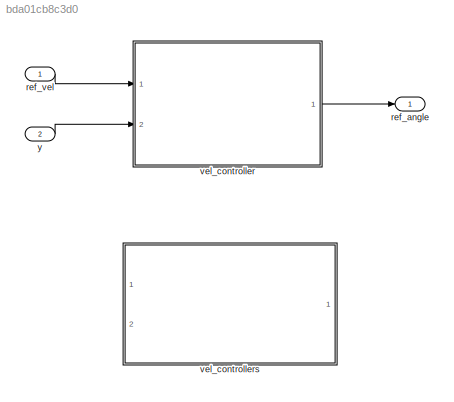
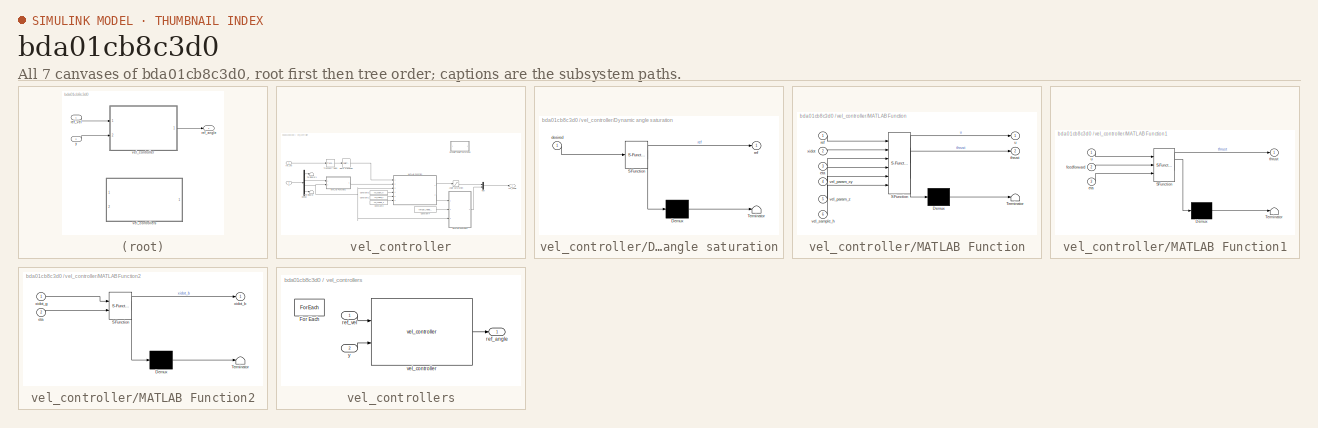
[diagram: thumbnail index - all 7 canvases of the model, root first then tree order]
MODEL slx_bda01cb8c3d0
KIND library
CONFIG AbsTol = auto
CONFIG EnableMultiTasking = off
CONFIG FixedStep = auto
CONFIG MaxStep = auto
CONFIG MinStep = auto
CONFIG RelTol = 1e-3
CONFIG SampleTimeConstraint = Unconstrained
CONFIG Solver = VariableStepAuto
CONFIG SolverName = VariableStepAuto
CONFIG StartTime = 0.0
CONFIG StopTime = 10.0
BLOCK [Outport] ref_angle
  IconDisplay = Port number
BLOCK [Inport] ref_vel
  IconDisplay = Port number
  PortDimensions = [3]
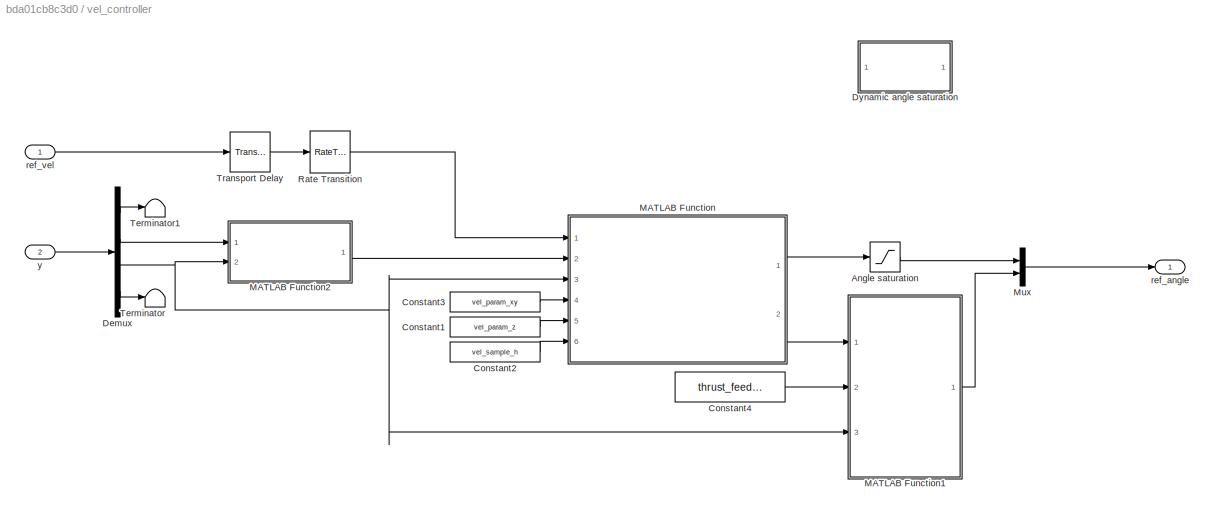
BLOCK [SubSystem] vel_controller
  Ports = [2, 1]
  RequestExecContextInheritance = off
BLOCK [Saturate] vel_controller/Angle saturation
  InputPortMap = u0
  LowerLimit = -vel_sat_angle
  Ports = [1, 1]
  UpperLimit = vel_sat_angle
BLOCK [Constant] vel_controller/Constant1
  Value = vel_param_z
BLOCK [Constant] vel_controller/Constant2
  Value = vel_sample_h
BLOCK [Constant] vel_controller/Constant3
  Value = vel_param_xy
BLOCK [Constant] vel_controller/Constant4
  Value = thrust_feedforward
BLOCK [Demux] vel_controller/Demux
  DisplayOption = bar
  Ports = [1, 4]
BLOCK [SubSystem] vel_controller/Dynamic angle saturation
  Commented = on
  ErrorFcn = Stateflow.Translate.translate
  PermitHierarchicalResolution = ExplicitOnly
  Ports = [1, 1]
  RequestExecContextInheritance = off
  SFBlockType = MATLAB Function
  TreatAsAtomicUnit = on
BLOCK [Demux] vel_controller/Dynamic angle saturation/ Demux 
  Outputs = 1
  Ports = [1, 1]
BLOCK [S-Function] vel_controller/Dynamic angle saturation/ SFunction 
  EnableBusSupport = off
  FunctionName = sf_sfun
  Parameters = vel_sat_angle
  PortCounts = [1 2]
  Ports = [1, 2]
  SFcnIsStateOwnerBlock = off
  SFunctionDeploymentMode = off
  Tag = Stateflow S-Function vel_controller_lib 4
BLOCK [Terminator] vel_controller/Dynamic angle saturation/ Terminator 
BLOCK [Inport] vel_controller/Dynamic angle saturation/desired
  IconDisplay = Port number
BLOCK [Outport] vel_controller/Dynamic angle saturation/ref
  IconDisplay = Port number
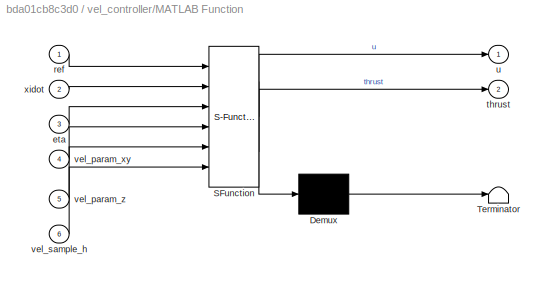
BLOCK [SubSystem] vel_controller/MATLAB Function
  ErrorFcn = Stateflow.Translate.translate
  PermitHierarchicalResolution = ExplicitOnly
  Ports = [6, 2]
  RequestExecContextInheritance = off
  SFBlockType = MATLAB Function
  SystemSampleTime = vel_sample_h
  TreatAsAtomicUnit = on
BLOCK [Demux] vel_controller/MATLAB Function/ Demux 
  Outputs = 1
  Ports = [1, 1]
BLOCK [S-Function] vel_controller/MATLAB Function/ SFunction 
  EnableBusSupport = off
  FunctionName = sf_sfun
  PortCounts = [6 3]
  Ports = [6, 3]
  SFcnIsStateOwnerBlock = off
  SFunctionDeploymentMode = off
  Tag = Stateflow S-Function vel_controller_lib 3
BLOCK [Terminator] vel_controller/MATLAB Function/ Terminator 
BLOCK [Inport] vel_controller/MATLAB Function/eta
  IconDisplay = Port number
  Port = 3
BLOCK [Inport] vel_controller/MATLAB Function/ref
  IconDisplay = Port number
BLOCK [Outport] vel_controller/MATLAB Function/thrust
  IconDisplay = Port number
  Port = 2
BLOCK [Outport] vel_controller/MATLAB Function/u
  IconDisplay = Port number
BLOCK [Inport] vel_controller/MATLAB Function/vel_param_xy
  IconDisplay = Port number
  Port = 4
BLOCK [Inport] vel_controller/MATLAB Function/vel_param_z
  IconDisplay = Port number
  Port = 5
BLOCK [Inport] vel_controller/MATLAB Function/vel_sample_h
  IconDisplay = Port number
  Port = 6
BLOCK [Inport] vel_controller/MATLAB Function/xidot
  IconDisplay = Port number
  Port = 2
BLOCK [SubSystem] vel_controller/MATLAB Function1
  ErrorFcn = Stateflow.Translate.translate
  PermitHierarchicalResolution = ExplicitOnly
  Ports = [3, 1]
  RequestExecContextInheritance = off
  SFBlockType = MATLAB Function
  TreatAsAtomicUnit = on
BLOCK [Demux] vel_controller/MATLAB Function1/ Demux 
  Outputs = 1
  Ports = [1, 1]
BLOCK [S-Function] vel_controller/MATLAB Function1/ SFunction 
  EnableBusSupport = off
  FunctionName = sf_sfun
  PortCounts = [3 2]
  Ports = [3, 2]
  SFcnIsStateOwnerBlock = off
  SFunctionDeploymentMode = off
  Tag = Stateflow S-Function vel_controller_lib 5
BLOCK [Terminator] vel_controller/MATLAB Function1/ Terminator 
BLOCK [Inport] vel_controller/MATLAB Function1/eta
  IconDisplay = Port number
  Port = 3
BLOCK [Inport] vel_controller/MATLAB Function1/feedforward
  IconDisplay = Port number
  Port = 2
BLOCK [Outport] vel_controller/MATLAB Function1/thrust
  IconDisplay = Port number
BLOCK [Inport] vel_controller/MATLAB Function1/u
  IconDisplay = Port number
BLOCK [SubSystem] vel_controller/MATLAB Function2
  ErrorFcn = Stateflow.Translate.translate
  PermitHierarchicalResolution = ExplicitOnly
  Ports = [2, 1]
  RequestExecContextInheritance = off
  SFBlockType = MATLAB Function
  TreatAsAtomicUnit = on
BLOCK [Demux] vel_controller/MATLAB Function2/ Demux 
  Outputs = 1
  Ports = [1, 1]
BLOCK [S-Function] vel_controller/MATLAB Function2/ SFunction 
  EnableBusSupport = off
  FunctionName = sf_sfun
  PortCounts = [2 2]
  Ports = [2, 2]
  SFcnIsStateOwnerBlock = off
  SFunctionDeploymentMode = off
  Tag = Stateflow S-Function vel_controller_lib 6
BLOCK [Terminator] vel_controller/MATLAB Function2/ Terminator 
BLOCK [Inport] vel_controller/MATLAB Function2/eta
  IconDisplay = Port number
  Port = 2
BLOCK [Outport] vel_controller/MATLAB Function2/xidot_b
  IconDisplay = Port number
BLOCK [Inport] vel_controller/MATLAB Function2/xidot_g
  IconDisplay = Port number
BLOCK [Mux] vel_controller/Mux
  DisplayOption = bar
  Inputs = [3 1]
  Ports = [2, 1]
BLOCK [RateTransition] vel_controller/Rate Transition
  InitialCondition = [0; 0; 0]
  OutPortSampleTime = 0.01
BLOCK [Terminator] vel_controller/Terminator
BLOCK [Terminator] vel_controller/Terminator1
BLOCK [TransportDelay] vel_controller/Transport Delay
  DelayTime = 0.005
  InitialOutput = [0; 0; 0]
  Ports = [1, 1]
BLOCK [Outport] vel_controller/ref_angle
  IconDisplay = Port number
BLOCK [Inport] vel_controller/ref_vel
  IconDisplay = Port number
BLOCK [Inport] vel_controller/y
  IconDisplay = Port number
  Port = 2
BLOCK [SubSystem] vel_controllers
  Ports = [2, 1]
  RequestExecContextInheritance = off
  TreatAsAtomicUnit = on
BLOCK [ForEach] vel_controllers/For Each
  DisableCoverage = on
  IndexMode = One-based
  Ports = []
BLOCK [Outport] vel_controllers/ref_angle
  ConcatenationDimension = 2
  IconDisplay = Port number
BLOCK [Inport] vel_controllers/ref_vel
  IconDisplay = Port number
  Partition = on
  PartitionDimension = 2
  PartitionOffset = 0
  PartitionWidth = 1
BLOCK [Reference] vel_controllers/vel_controller  REF=$bdroot/vel_controller
  Ports = [2, 1]
  SourceBlock = $bdroot/vel_controller
  SourceType = SubSystem
BLOCK [Inport] vel_controllers/y
  IconDisplay = Port number
  Partition = on
  PartitionDimension = 2
  PartitionOffset = 0
  PartitionWidth = 1
  Port = 2
BLOCK [Inport] y
  IconDisplay = Port number
  Port = 2
LINE ref_vel:1 -> vel_controller:1
LINE vel_controller/Angle saturation:1 -> vel_controller/Mux:1
LINE vel_controller/Constant1:1 -> vel_controller/MATLAB Function:5
LINE vel_controller/Constant2:1 -> vel_controller/MATLAB Function:6
LINE vel_controller/Constant3:1 -> vel_controller/MATLAB Function:4
LINE vel_controller/Constant4:1 -> vel_controller/MATLAB Function1:2
LINE vel_controller/Demux:1 -> vel_controller/Terminator1:1
LINE vel_controller/Demux:2 -> vel_controller/MATLAB Function2:1
NET vel_controller/Demux:3 -> vel_controller/MATLAB Function1:3, vel_controller/MATLAB Function2:2, vel_controller/MATLAB Function:3
LINE vel_controller/Demux:4 -> vel_controller/Terminator:1
LINE vel_controller/MATLAB Function1:1 -> vel_controller/Mux:2
LINE vel_controller/MATLAB Function2:1 -> vel_controller/MATLAB Function:2
LINE vel_controller/MATLAB Function:1 -> vel_controller/Angle saturation:1
LINE vel_controller/MATLAB Function:2 -> vel_controller/MATLAB Function1:1
LINE vel_controller/Mux:1 -> vel_controller/ref_angle:1
LINE vel_controller/Rate Transition:1 -> vel_controller/MATLAB Function:1
LINE vel_controller/Transport Delay:1 -> vel_controller/Rate Transition:1
LINE vel_controller/ref_vel:1 -> vel_controller/Transport Delay:1
LINE vel_controller/y:1 -> vel_controller/Demux:1
LINE vel_controller:1 -> ref_angle:1
LINE vel_controllers/ref_vel:1 -> vel_controllers/vel_controller:1
LINE vel_controllers/vel_controller:1 -> vel_controllers/ref_angle:1
LINE vel_controllers/y:1 -> vel_controllers/vel_controller:2
LINE y:1 -> vel_controller:2
note: NET lines group one-source signal fan-out (src -> all destinations, sorted); 1:1 wires keep LINE
CHART vel_controller/MATLAB Function states=1 transitions=1
  STATE_LABEL 'eML_blk_kernel()'
  STATE_LABEL 'SCRIPT:\nfunction [u, thrust]= velocitycontrolPID(ref, xidot, eta, vel_param_xy, vel_param_z, vel_sample_h)\n    persistent integ prev_error\n    if isempty(integ)\n        integ = [0;0;0];\n    end\n    if isempty(prev_error)\n        prev_error = [0;0;0];\n    end\n    \n    % Remap desired velocity from inertial to body frame\n    R = eta2Rgb(eta, 0);\n    ref = R*ref;\n    error = ref - xidot;\n    \n    % S...<+693ch>'
CHART vel_controller/Dynamic angle saturation states=1 transitions=1
  STATE_LABEL 'eML_blk_kernel()'
  STATE_LABEL 'SCRIPT:\nfunction ref = fcn(desired, vel_sat_angle)\n% ref = saturate_angle(desired, vel_sat_angle);\n%ref = desired;\nend'
CHART vel_controller/MATLAB Function1 states=1 transitions=1
  STATE_LABEL 'eML_blk_kernel()'
  STATE_LABEL 'SCRIPT:\nfunction thrust = thrust_feedforward(u, feedforward, eta)\n\n%thrust = (feedforward + 5000*u)/(cos(eta(1))*cos(eta(2)));\n%thrust = (feedforward + 1000*u)/(cos(eta(1))*cos(eta(2)));\nthrust = (feedforward + 1000*u);\n\nend'
CHART vel_controller/MATLAB Function2 states=1 transitions=1
  STATE_LABEL 'eML_blk_kernel()'
  STATE_LABEL 'SCRIPT:\nfunction xidot_b = xidot_global2body(xidot_g, eta)\n    R = eta2Rgb(eta, 0);\n    xidot_b = R*xidot_g;\nend\n'
